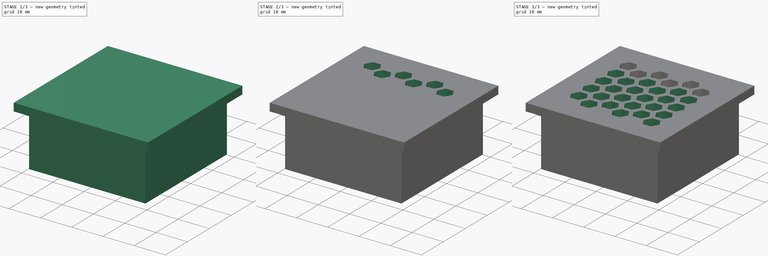
[diagram: build sequence overview — one tinted view per stage of 3, left to right]
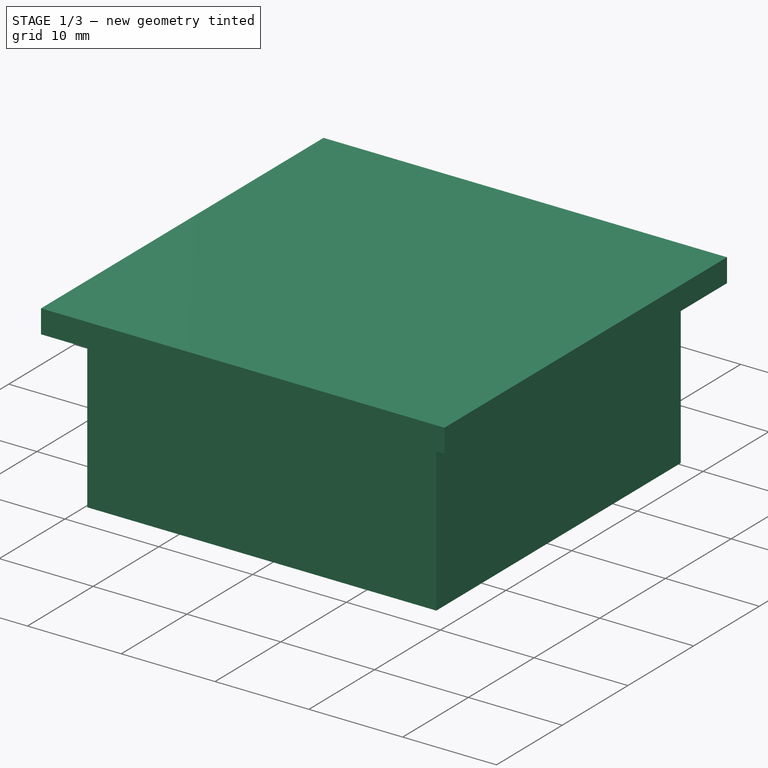
[diagram: stage 1 of 3 — iso view after this stage's code; geometry added in this stage tinted green]
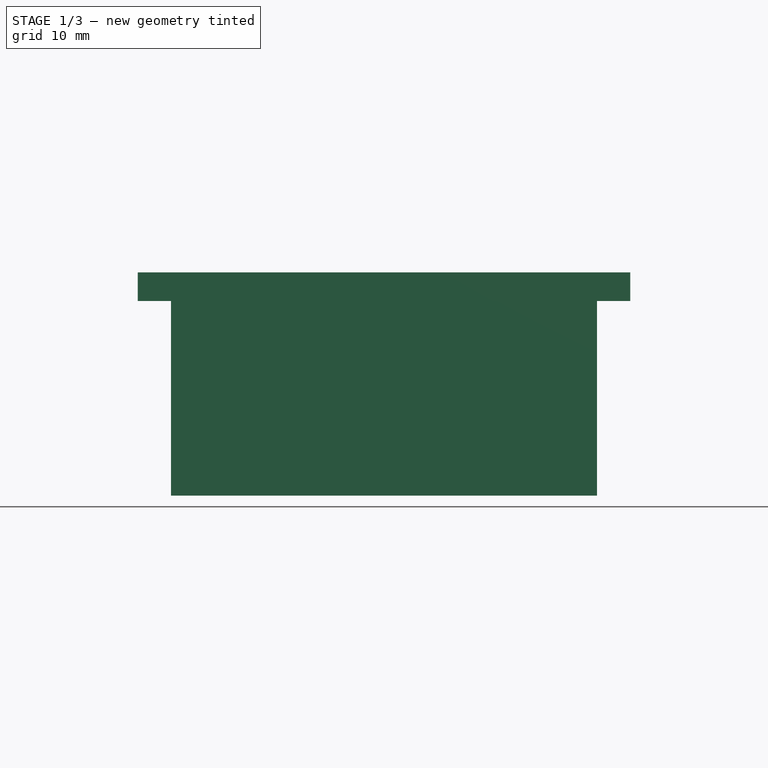
[diagram: stage 1 of 3 — front view after this stage's code; geometry added in this stage tinted green]
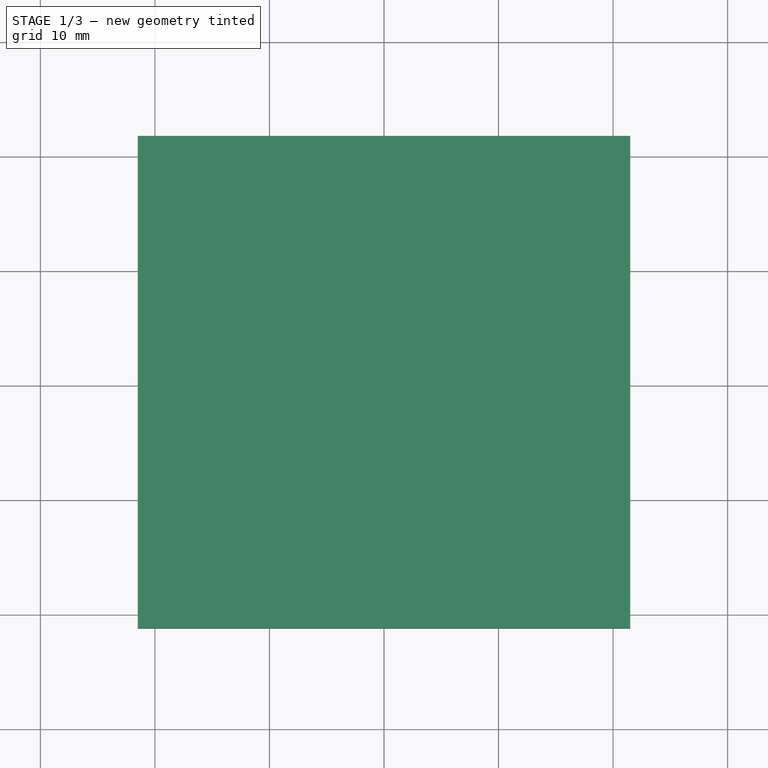
[diagram: stage 1 of 3 — top view after this stage's code; geometry added in this stage tinted green]
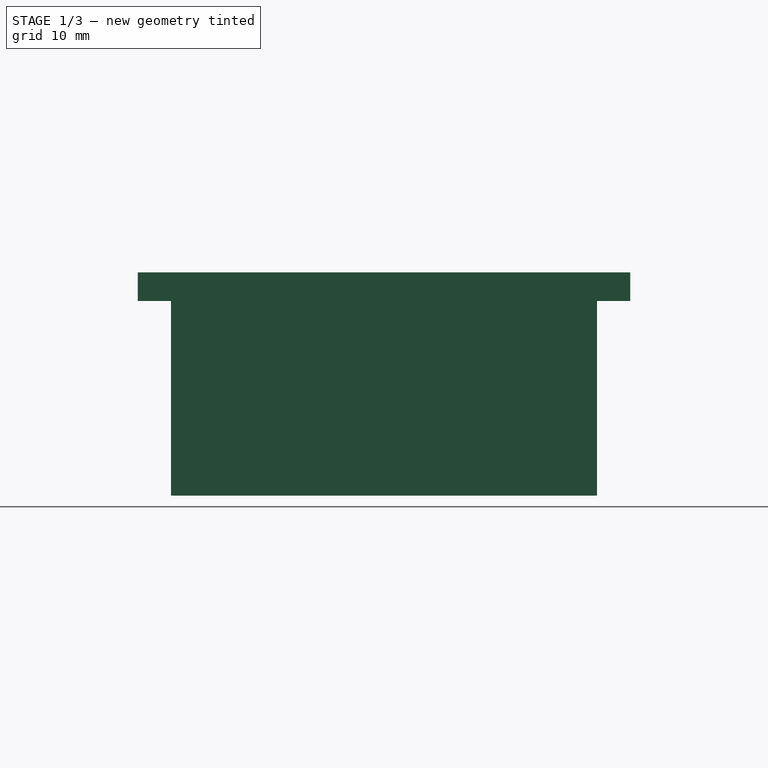
[diagram: stage 1 of 3 — right view after this stage's code; geometry added in this stage tinted green]
FCSTD DOCUMENT  (FreeCAD 0.16R6712 (Git))
Label: adaptador_opc
License: All rights reserved
LicenseURL: http://en.wikipedia.org/wiki/All_rights_reserved
objects: Sketcher::SketchObject×3, PartDesign::Pad×2, PartDesign::Pocket×1, PartDesign::LinearPattern×1, PartDesign::Fillet×1, Part::Feature×1
note: 12 computed .brp shape members not serialized (recipe doc carries the construction recipe); baked Part::Feature solids carry a one-line shape summary decoded from their .brp

FEATURE [Sketcher::SketchObject] Sketch
  sketch-geometry (12):
    g0: LineSegment StartX=-18.6 StartY=18.6 StartZ=0 EndX=18.6 EndY=18.6 EndZ=0
    g1: LineSegment StartX=18.6 StartY=18.6 StartZ=0 EndX=18.6 EndY=-18.6 EndZ=0
    g2: LineSegment StartX=18.6 StartY=-18.6 StartZ=0 EndX=-18.6 EndY=-18.6 EndZ=0
    g3: LineSegment StartX=-18.6 StartY=-18.6 StartZ=0 EndX=-18.6 EndY=18.6 EndZ=0
    g4: LineSegment StartX=-15.4 StartY=15.4 StartZ=0 EndX=15.4 EndY=15.4 EndZ=0
    g5: LineSegment StartX=15.4 StartY=15.4 StartZ=0 EndX=15.4 EndY=-15.4 EndZ=0
    g6: LineSegment StartX=15.4 StartY=-15.4 StartZ=0 EndX=-15.4 EndY=-15.4 EndZ=0
    g7: LineSegment StartX=-15.4 StartY=-15.4 StartZ=0 EndX=-15.4 EndY=15.4 EndZ=0
    g8: LineSegment [constr] StartX=-15.4 StartY=15.4 StartZ=0 EndX=-18.6 EndY=18.6 EndZ=0
    g9: LineSegment [constr] StartX=18.6 StartY=18.6 StartZ=0 EndX=15.4 EndY=15.4 EndZ=0
    g10: LineSegment [constr] StartX=18.6 StartY=-18.6 StartZ=0 EndX=15.4 EndY=-15.4 EndZ=0
    g11: LineSegment [constr] StartX=-18.6 StartY=-18.6 StartZ=0 EndX=-15.4 EndY=-15.4 EndZ=0
  constraints (34):
    c: Coincident(g0,g1)
    c: Coincident(g1,g2)
    c: Coincident(g2,g3)
    c: Coincident(g3,g0)
    c: Horizontal(g0)
    c: Vertical(g1)
    c: Equal(g2,g3)
    c: Equal(g3,g0)
    c: Equal(g0,g1)
    c: DistanceX(g0,g0) = 37.2
    c: Symmetric(g2,g1,g-2)
    c: Symmetric(g2,g0,g-1)
    c: Coincident(g4,g5)
    c: Coincident(g5,g6)
    c: Coincident(g6,g7)
    c: Coincident(g7,g4)
    c: Horizontal(g4)
    c: Vertical(g5)
    c: Vertical(g7)
    c: Equal(g4,g7)
    c: Equal(g7,g6)
    c: Equal(g6,g5)
    c: Coincident(g8,g4)
    c: Coincident(g8,g0)
    c: Coincident(g9,g0)
    c: Coincident(g9,g4)
    c: Coincident(g10,g1)
    c: Coincident(g10,g5)
    c: Coincident(g11,g2)
    c: Coincident(g11,g6)
    c: Equal(g11,g8)
    c: Equal(g8,g9)
    c: Equal(g9,g10)
    c: DistanceX(g4,g4) = 30.8
FEATURE [PartDesign::Pad] Pad
  Length = 17
  Length2 = 100
  Sketch = -> Sketch
  Type = 0
FEATURE [Sketcher::SketchObject] Sketch001
  Placement = pos=(0,0,17) rot=(0,0,1;0rad)
  Support = -> Pad [Face10]
  sketch-geometry (4):
    g0: LineSegment StartX=-21.5 StartY=21.5 StartZ=0 EndX=21.5 EndY=21.5 EndZ=0
    g1: LineSegment StartX=21.5 StartY=21.5 StartZ=0 EndX=21.5 EndY=-21.5 EndZ=0
    g2: LineSegment StartX=21.5 StartY=-21.5 StartZ=0 EndX=-21.5 EndY=-21.5 EndZ=0
    g3: LineSegment StartX=-21.5 StartY=-21.5 StartZ=0 EndX=-21.5 EndY=21.5 EndZ=0
  constraints (13):
    c: Coincident(g0,g1)
    c: Coincident(g1,g2)
    c: Coincident(g2,g3)
    c: Coincident(g3,g0)
    c: Horizontal(g2)
    c: Vertical(g1)
    c: Vertical(g3)
    c: Equal(g3,g0)
    c: Equal(g0,g1)
    c: Equal(g1,g2)
    c: DistanceX(g0,g0) = 43
    c: Symmetric(g0,g0,g-2)
    c: Symmetric(g2,g0,g-1)
FEATURE [PartDesign::Pad] Pad001
  Length = 2.5
  Length2 = 100
  Sketch = -> Sketch001
  Type = 0
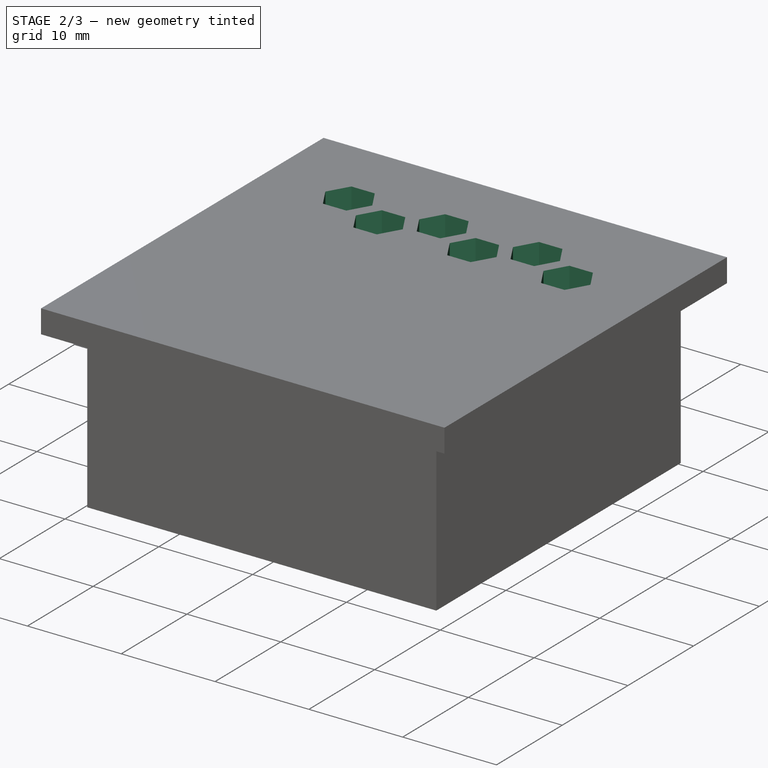
[diagram: stage 2 of 3 — iso view after this stage's code; geometry added in this stage tinted green]
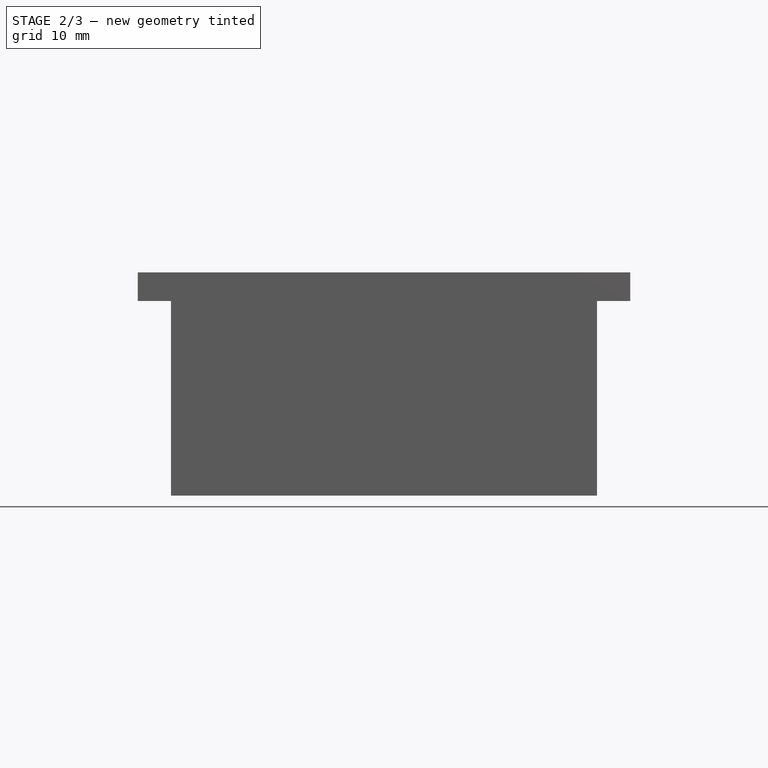
[diagram: stage 2 of 3 — front view after this stage's code; geometry added in this stage tinted green]
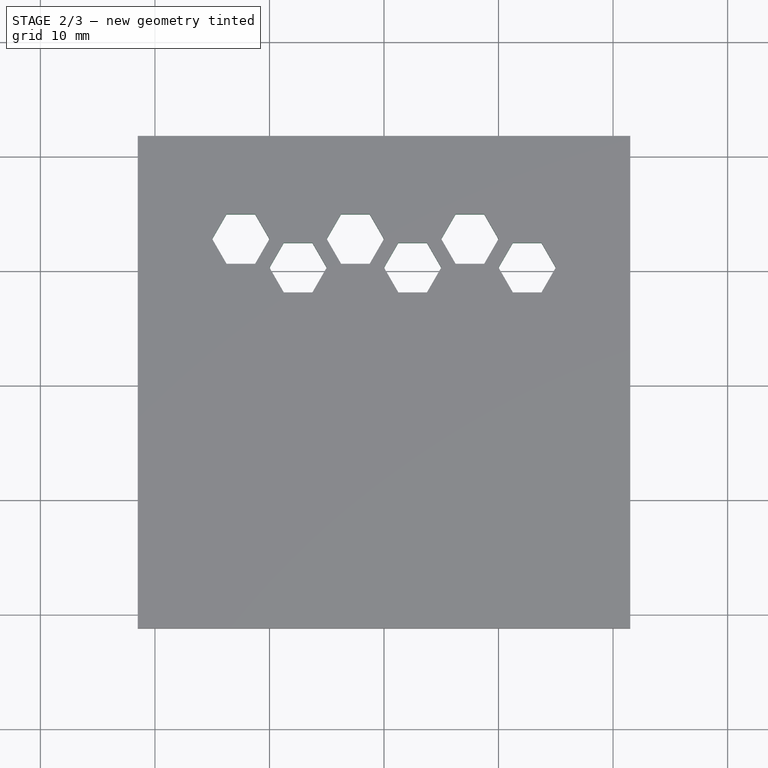
[diagram: stage 2 of 3 — top view after this stage's code; geometry added in this stage tinted green]
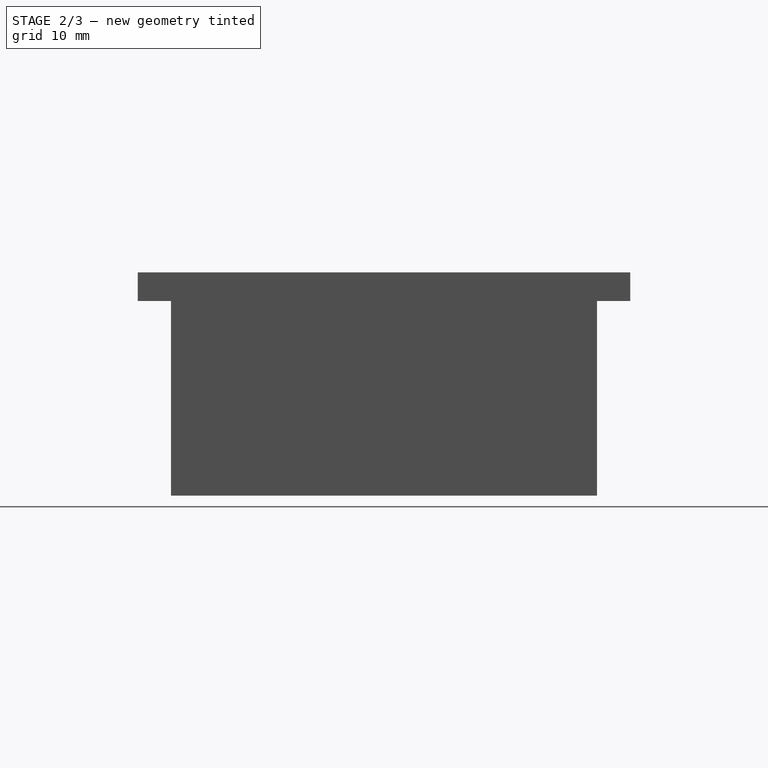
[diagram: stage 2 of 3 — right view after this stage's code; geometry added in this stage tinted green]
FEATURE [Sketcher::SketchObject] Sketch002
  Placement = pos=(0,0,19.5) rot=(0,0,1;0rad)
  Support = -> Pad001 [Face16]
  sketch-geometry (57):
    g0: LineSegment [constr] StartX=-15 StartY=15 StartZ=0 EndX=15 EndY=15 EndZ=0
    g1: LineSegment [constr] StartX=15 StartY=15 StartZ=0 EndX=15 EndY=-15 EndZ=0
    g2: LineSegment [constr] StartX=15 StartY=-15 StartZ=0 EndX=-15 EndY=-15 EndZ=0
    g3: LineSegment [constr] StartX=-15 StartY=-15 StartZ=0 EndX=-15 EndY=15 EndZ=0
    g4: LineSegment [constr] StartX=-12.5 StartY=15 StartZ=0 EndX=-12.5 EndY=-15 EndZ=0
    g5: LineSegment [constr] StartX=-10 StartY=15 StartZ=0 EndX=-10 EndY=-15 EndZ=0
    g6: LineSegment [constr] StartX=-7.5 StartY=15 StartZ=0 EndX=-7.5 EndY=-15 EndZ=0
    g7: LineSegment [constr] StartX=-5 StartY=15 StartZ=0 EndX=-5 EndY=-15 EndZ=0
    g8: LineSegment StartX=-10 StartY=12.5 StartZ=0 EndX=-11.25 EndY=14.6651 EndZ=0
    g9: LineSegment StartX=-11.25 StartY=14.6651 StartZ=0 EndX=-13.75 EndY=14.6651 EndZ=0
    g10: LineSegment StartX=-13.75 StartY=14.6651 StartZ=0 EndX=-15 EndY=12.5 EndZ=0
    g11: LineSegment StartX=-15 StartY=12.5 StartZ=0 EndX=-13.75 EndY=10.3349 EndZ=0
    g12: LineSegment StartX=-13.75 StartY=10.3349 StartZ=0 EndX=-11.25 EndY=10.3349 EndZ=0
    g13: LineSegment StartX=-11.25 StartY=10.3349 StartZ=0 EndX=-10 EndY=12.5 EndZ=0
    g14: Circle [constr] CenterX=-12.5 CenterY=12.5 CenterZ=0 NormalX=0 NormalY=0 NormalZ=1 Radius=2.5
    g15: LineSegment StartX=-5 StartY=10 StartZ=0 EndX=-6.25 EndY=12.1651 EndZ=0
    g16: LineSegment StartX=-6.25 StartY=12.1651 StartZ=0 EndX=-8.75 EndY=12.1651 EndZ=0
    g17: LineSegment StartX=-8.75 StartY=12.1651 StartZ=0 EndX=-10 EndY=10 EndZ=0
    g18: LineSegment StartX=-10 StartY=10 StartZ=0 EndX=-8.75 EndY=7.83494 EndZ=0
    g19: LineSegment StartX=-8.75 StartY=7.83494 StartZ=0 EndX=-6.25 EndY=7.83494 EndZ=0
    g20: LineSegment StartX=-6.25 StartY=7.83494 StartZ=0 EndX=-5 EndY=10 EndZ=0
    g21: Circle [constr] CenterX=-7.5 CenterY=10 CenterZ=0 NormalX=0 NormalY=0 NormalZ=1 Radius=2.5
    g22: LineSegment [constr] StartX=-2.5 StartY=15 StartZ=0 EndX=-2.5 EndY=-15 EndZ=0
    g23: LineSegment [constr] StartX=0 StartY=15 StartZ=0 EndX=0 EndY=-15 EndZ=0
    g24: LineSegment StartX=0 StartY=12.5 StartZ=0 EndX=-1.25 EndY=14.6651 EndZ=0
    g25: LineSegment StartX=-1.25 StartY=14.6651 StartZ=0 EndX=-3.75 EndY=14.6651 EndZ=0
    g26: LineSegment StartX=-3.75 StartY=14.6651 StartZ=0 EndX=-5 EndY=12.5 EndZ=0
    g27: LineSegment StartX=-5 StartY=12.5 StartZ=0 EndX=-3.75 EndY=10.3349 EndZ=0
    g28: LineSegment StartX=-3.75 StartY=10.3349 StartZ=0 EndX=-1.25 EndY=10.3349 EndZ=0
    g29: LineSegment StartX=-1.25 StartY=10.3349 StartZ=0 EndX=0 EndY=12.5 EndZ=0
    g30: Circle [constr] CenterX=-2.5 CenterY=12.5 CenterZ=0 NormalX=0 NormalY=0 NormalZ=1 Radius=2.5
    g31: LineSegment [constr] StartX=2.5 StartY=15 StartZ=0 EndX=2.5 EndY=-15 EndZ=0
    g32: LineSegment [constr] StartX=5 StartY=-15 StartZ=0 EndX=5 EndY=15 EndZ=0
    g33: LineSegment [constr] StartX=7.5 StartY=15 StartZ=0 EndX=7.5 EndY=-15 EndZ=0
    g34: LineSegment [constr] StartX=10 StartY=-15 StartZ=0 EndX=10 EndY=15 EndZ=0
    g35: LineSegment [constr] StartX=12.5 StartY=15 StartZ=0 EndX=12.5 EndY=-15 EndZ=0
    g36: LineSegment StartX=5 StartY=10 StartZ=0 EndX=3.75 EndY=12.1651 EndZ=0
    g37: LineSegment StartX=3.75 StartY=12.1651 StartZ=0 EndX=1.25 EndY=12.1651 EndZ=0
    g38: LineSegment StartX=1.25 StartY=12.1651 StartZ=0 EndX=0 EndY=10 EndZ=0
    g39: LineSegment StartX=0 StartY=10 StartZ=0 EndX=1.25 EndY=7.83494 EndZ=0
    g40: LineSegment StartX=1.25 StartY=7.83494 StartZ=0 EndX=3.75 EndY=7.83494 EndZ=0
    g41: LineSegment StartX=3.75 StartY=7.83494 StartZ=0 EndX=5 EndY=10 EndZ=0
    g42: Circle [constr] CenterX=2.5 CenterY=10 CenterZ=0 NormalX=0 NormalY=0 NormalZ=1 Radius=2.5
    g43: LineSegment StartX=10 StartY=12.5 StartZ=0 EndX=8.75 EndY=14.6651 EndZ=0
    g44: LineSegment StartX=8.75 StartY=14.6651 StartZ=0 EndX=6.25 EndY=14.6651 EndZ=0
    g45: LineSegment StartX=6.25 StartY=14.6651 StartZ=0 EndX=5 EndY=12.5 EndZ=0
    g46: LineSegment StartX=5 StartY=12.5 StartZ=0 EndX=6.25 EndY=10.3349 EndZ=0
    g47: LineSegment StartX=6.25 StartY=10.3349 StartZ=0 EndX=8.75 EndY=10.3349 EndZ=0
    g48: LineSegment StartX=8.75 StartY=10.3349 StartZ=0 EndX=10 EndY=12.5 EndZ=0
    g49: Circle [constr] CenterX=7.5 CenterY=12.5 CenterZ=0 NormalX=0 NormalY=0 NormalZ=1 Radius=2.5
    g50: LineSegment StartX=15 StartY=10 StartZ=0 EndX=13.75 EndY=12.1651 EndZ=0
    g51: LineSegment StartX=13.75 StartY=12.1651 StartZ=0 EndX=11.25 EndY=12.1651 EndZ=0
    g52: LineSegment StartX=11.25 StartY=12.1651 StartZ=0 EndX=10 EndY=10 EndZ=0
    g53: LineSegment StartX=10 StartY=10 StartZ=0 EndX=11.25 EndY=7.83494 EndZ=0
    g54: LineSegment StartX=11.25 StartY=7.83494 StartZ=0 EndX=13.75 EndY=7.83494 EndZ=0
    g55: LineSegment StartX=13.75 StartY=7.83494 StartZ=0 EndX=15 EndY=10 EndZ=0
    g56: Circle [constr] CenterX=12.5 CenterY=10 CenterZ=0 NormalX=0 NormalY=0 NormalZ=1 Radius=2.5
  constraints (159):
    c: Coincident(g0,g1)
    c: Coincident(g1,g2)
    c: Coincident(g2,g3)
    c: Coincident(g3,g0)
    c: Horizontal(g2)
    c: Vertical(g1)
    c: Vertical(g3)
    c: Equal(g0,g3)
    c: Equal(g3,g1)
    c: Equal(g1,g2)
    c: DistanceX(g0,g0) = 30
    c: Symmetric(g0,g0,g-2)
    c: Symmetric(g2,g0,g-1)
    c: PointOnObject(g4,g0)
    c: PointOnObject(g4,g2)
    c: Vertical(g4)
    c: PointOnObject(g5,g0)
    c: PointOnObject(g5,g2)
    c: Vertical(g5)
    c: PointOnObject(g6,g0)
    c: PointOnObject(g6,g2)
    c: Vertical(g6)
    c: PointOnObject(g7,g0)
    c: PointOnObject(g7,g2)
    c: Vertical(g7)
    c: Coincident(g8,g9)
    c: Coincident(g9,g10)
    c: Coincident(g10,g11)
    c: Coincident(g11,g12)
    c: Coincident(g12,g13)
    c: Coincident(g13,g8)
    c: Equal(g8, g9-g13) x5
    c: PointOnObject(g8,g14)
    c: PointOnObject(g9,g14)
    c: PointOnObject(g10,g14)
    c: PointOnObject(g11,g14)
    c: PointOnObject(g12,g14)
    c: PointOnObject(g13,g14)
    c: PointOnObject(g14,g4)
    c: Horizontal(g12)
    c: PointOnObject(g10,g3)
    c: PointOnObject(g8,g5)
    c: DistanceX(g0,g4) = 2.5
    c: DistanceY(g14,g4) = 2.5
    c: Coincident(g15,g16)
    c: Coincident(g16,g17)
    c: Coincident(g17,g18)
    c: Coincident(g18,g19)
    c: Coincident(g19,g20)
    c: Coincident(g20,g15)
    c: Equal(g15, g16-g20) x5
    c: PointOnObject(g15,g21)
    c: PointOnObject(g16,g21)
    c: PointOnObject(g17,g21)
    c: PointOnObject(g18,g21)
    c: PointOnObject(g19,g21)
    c: PointOnObject(g20,g21)
    c: PointOnObject(g21,g6)
    c: PointOnObject(g15,g7)
    c: PointOnObject(g17,g5)
    c: Horizontal(g19)
    c: Equal(g16,g9)
    c: DistanceY(g21,g14) = 2.5
    c: PointOnObject(g22,g0)
    c: PointOnObject(g22,g2)
    c: Vertical(g22)
    c: PointOnObject(g23,g0)
    c: Vertical(g23)
    c: PointOnObject(g23,g2)
    c: Coincident(g24,g25)
    c: Coincident(g25,g26)
    c: Coincident(g26,g27)
    c: Coincident(g27,g28)
    c: Coincident(g28,g29)
    c: Coincident(g29,g24)
    c: Equal(g24, g25-g29) x5
    c: PointOnObject(g24,g30)
    c: PointOnObject(g25,g30)
    c: PointOnObject(g26,g30)
    c: PointOnObject(g27,g30)
    c: PointOnObject(g28,g30)
    c: PointOnObject(g29,g30)
    c: PointOnObject(g30,g22)
    c: Horizontal(g28)
    c: PointOnObject(g24,g23)
    c: PointOnObject(g26,g7)
    c: Equal(g25,g9)
    c: DistanceY(g30,g22) = 2.5
    c: PointOnObject(g31,g0)
    c: PointOnObject(g31,g2)
    c: Vertical(g31)
    c: PointOnObject(g32,g2)
    c: PointOnObject(g32,g0)
    c: Vertical(g32)
    c: PointOnObject(g33,g0)
    c: PointOnObject(g33,g2)
    c: Vertical(g33)
    c: PointOnObject(g34,g2)
    c: PointOnObject(g34,g0)
    c: Vertical(g34)
    c: PointOnObject(g35,g0)
    c: PointOnObject(g35,g2)
    c: Vertical(g35)
    c: Coincident(g36,g37)
    c: Coincident(g37,g38)
    c: Coincident(g38,g39)
    c: Coincident(g39,g40)
    c: Coincident(g40,g41)
    c: Coincident(g41,g36)
    c: Equal(g36, g37-g41) x5
    c: PointOnObject(g36,g42)
    c: PointOnObject(g37,g42)
    c: PointOnObject(g38,g42)
    c: PointOnObject(g39,g42)
    c: PointOnObject(g40,g42)
    c: PointOnObject(g41,g42)
    c: PointOnObject(g42,g31)
    c: Coincident(g43,g44)
    c: Coincident(g44,g45)
    c: Coincident(g45,g46)
    c: Coincident(g46,g47)
    c: Coincident(g47,g48)
    c: Coincident(g48,g43)
    c: Equal(g43, g44-g48) x5
    c: PointOnObject(g43,g49)
    c: PointOnObject(g44,g49)
    c: PointOnObject(g45,g49)
    c: PointOnObject(g46,g49)
    c: PointOnObject(g47,g49)
    c: PointOnObject(g48,g49)
    c: PointOnObject(g49,g33)
    c: PointOnObject(g48,g34)
    c: Coincident(g50,g51)
    c: Coincident(g51,g52)
    c: Coincident(g52,g53)
    c: Coincident(g53,g54)
    c: Coincident(g54,g55)
    c: Coincident(g55,g50)
    c: Equal(g50, g51-g55) x5
    c: PointOnObject(g50,g56)
    c: PointOnObject(g51,g56)
    c: PointOnObject(g52,g56)
    c: PointOnObject(g53,g56)
    c: PointOnObject(g54,g56)
    c: PointOnObject(g55,g56)
    c: PointOnObject(g56,g35)
    c: Horizontal(g40)
    c: PointOnObject(g38,g23)
    c: PointOnObject(g36,g32)
    c: PointOnObject(g45,g32)
    c: Horizontal(g47)
    c: Horizontal(g54)
    c: PointOnObject(g52,g34)
    c: PointOnObject(g50,g1)
    c: Equal(g51,g37)
    c: Equal(g37,g9)
    c: DistanceY(g42,g30) = 2.5
    c: DistanceY(g49,g33) = 2.5
    c: DistanceY(g56,g49) = 2.5
FEATURE [PartDesign::Pocket] Pocket
  Length = 2.5
  Sketch = -> Sketch002
  Type = 0
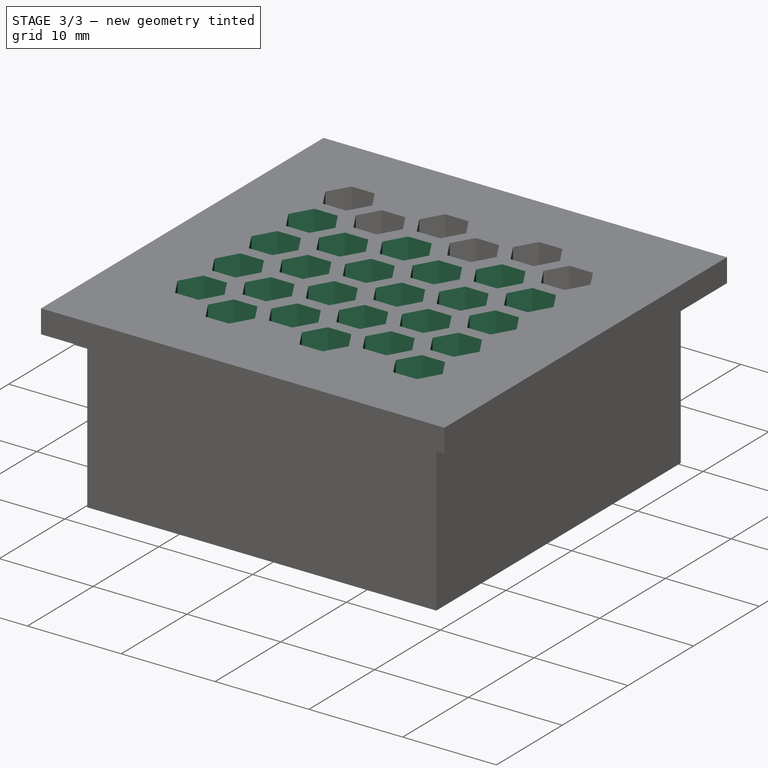
[diagram: stage 3 of 3 — iso view after this stage's code; geometry added in this stage tinted green]
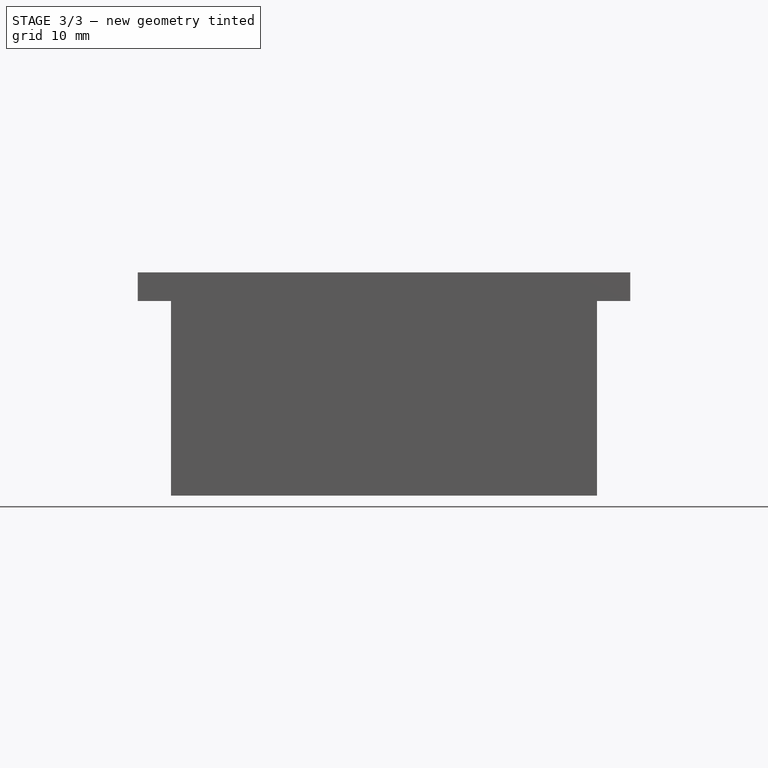
[diagram: stage 3 of 3 — front view after this stage's code; geometry added in this stage tinted green]
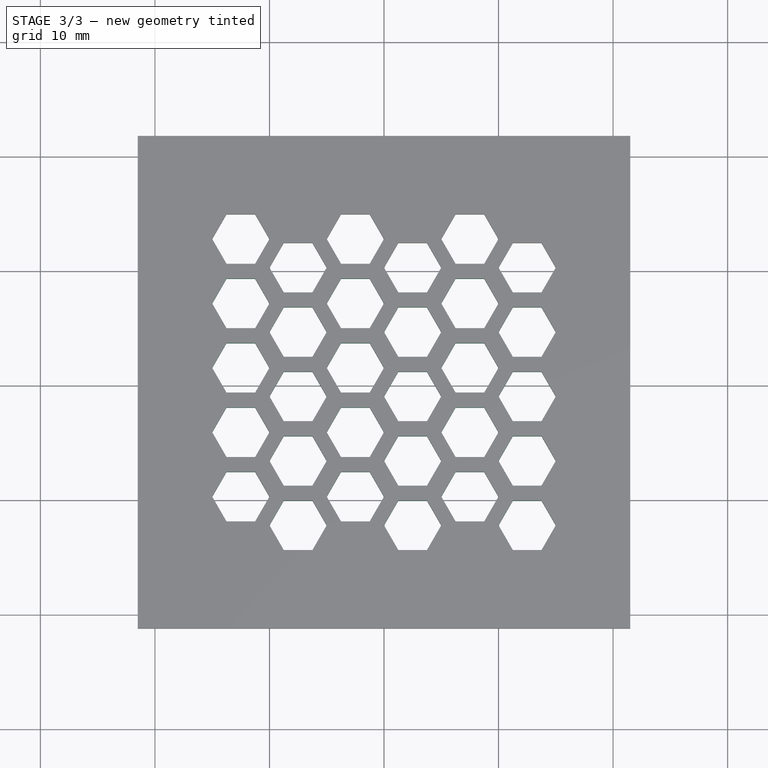
[diagram: stage 3 of 3 — top view after this stage's code; geometry added in this stage tinted green]
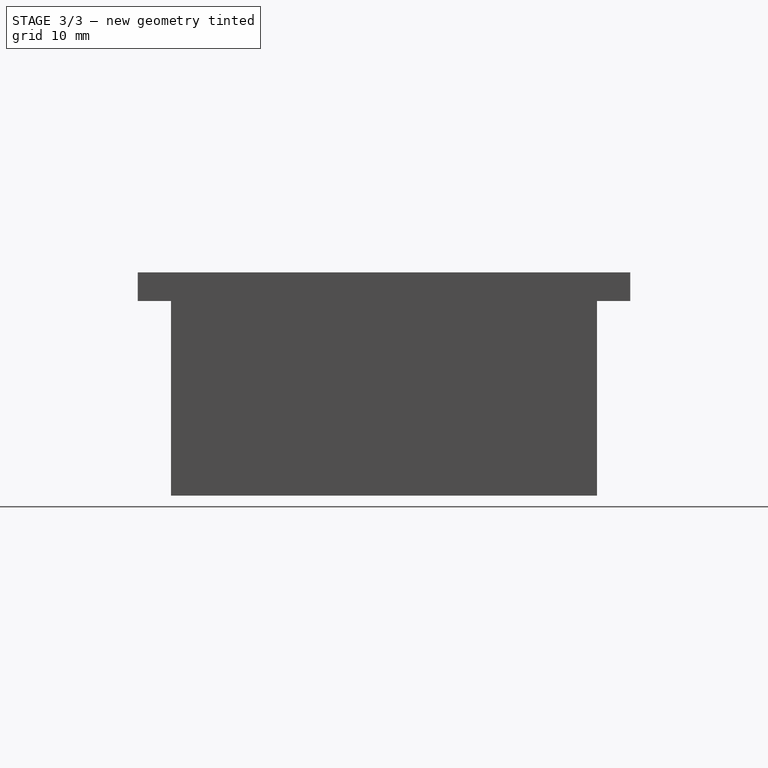
[diagram: stage 3 of 3 — right view after this stage's code; geometry added in this stage tinted green]
FEATURE [PartDesign::LinearPattern] LinearPattern
  Direction = -> Sketch002 [V_Axis]
  Length = 22.5
  Occurrences = 5
  Originals = -> [Pocket]
  Reversed = true
FEATURE [PartDesign::Fillet] Fillet
  Base = -> LinearPattern [Edge17,Edge19,Edge21,Edge23]
  Radius = 2
FEATURE [Part::Feature] Fillet001  label="adaptador_opc"
  shape: bbox 43 x 43 x 19.5 mm, 200 faces (baked)
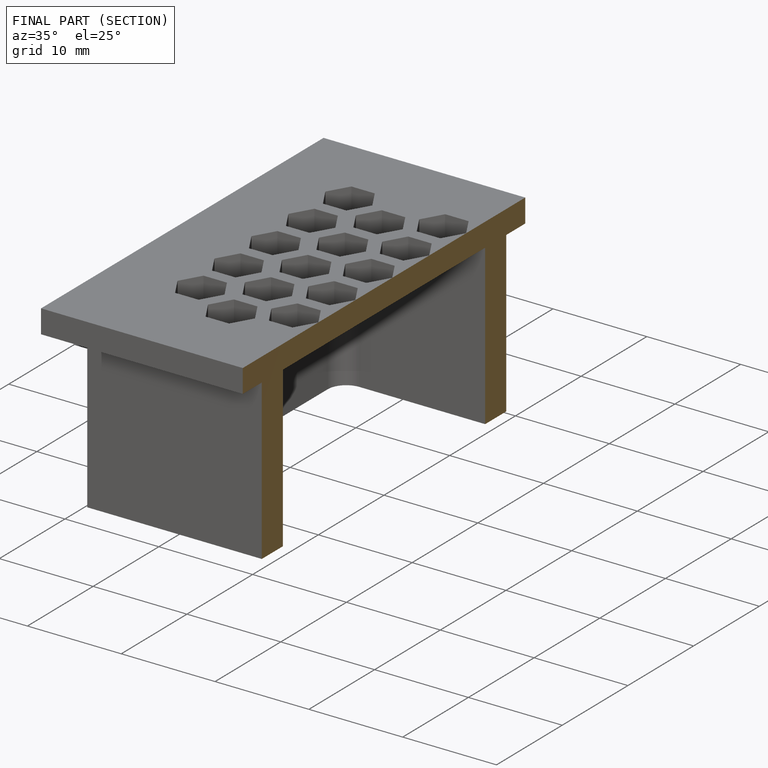
[diagram: finished part — half-section view (interior)]
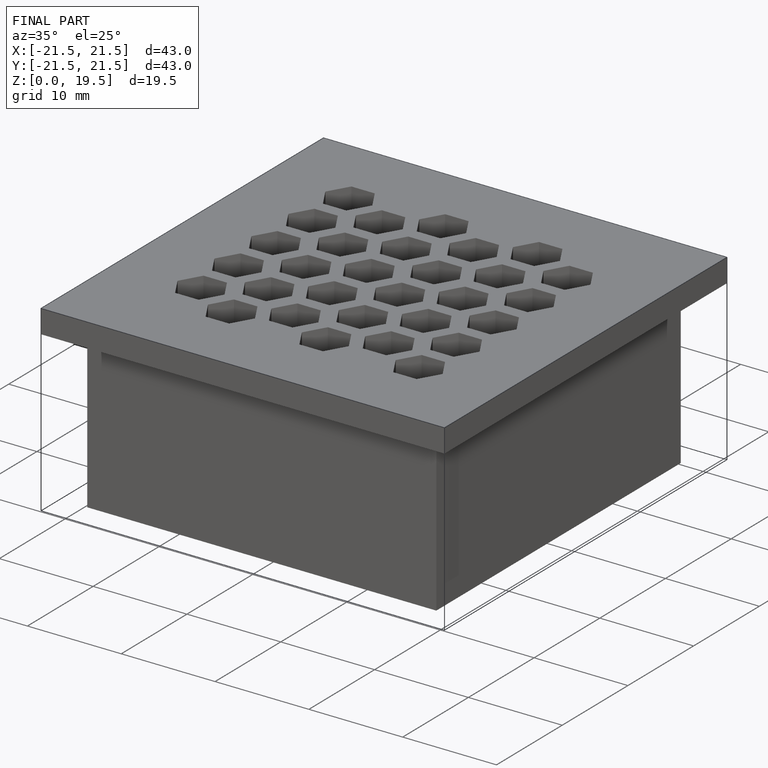
[diagram: finished part — iso view with bounding-box wireframe]
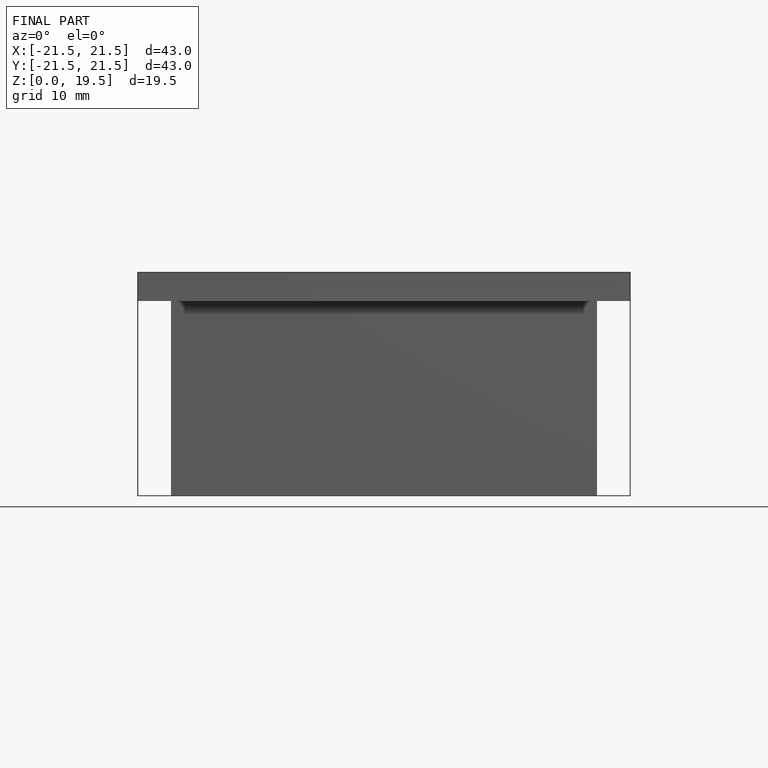
[diagram: finished part — front view with bounding-box wireframe]
